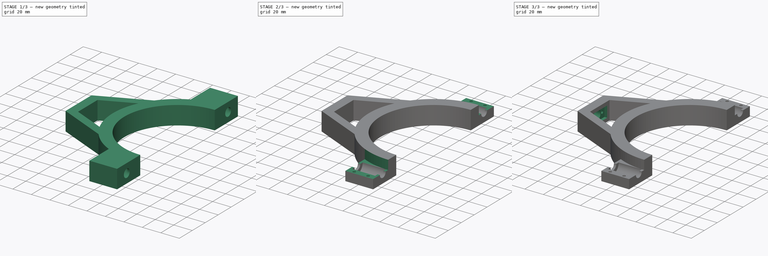
[diagram: build sequence overview — one tinted view per stage of 3, left to right]
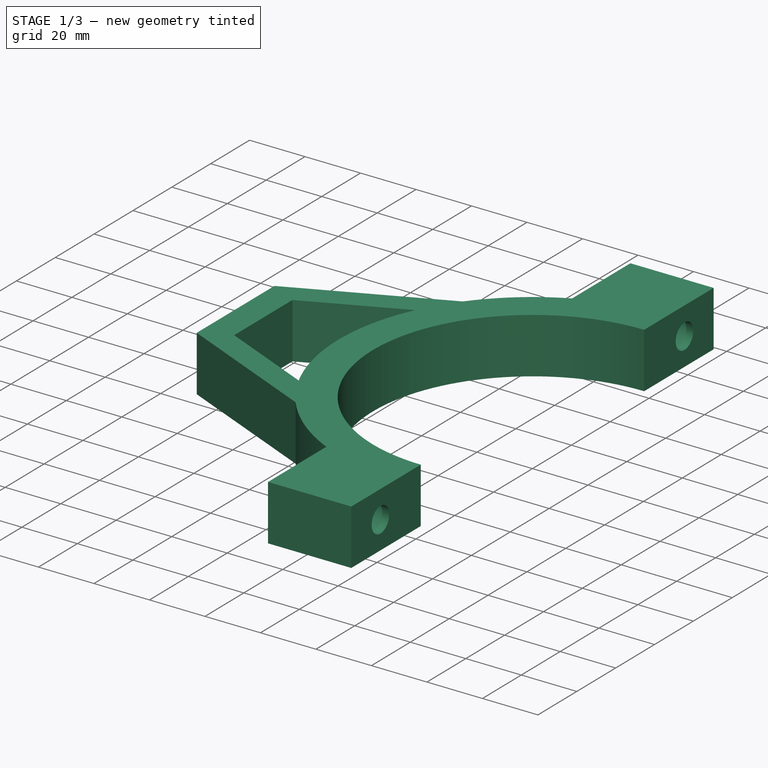
[diagram: stage 1 of 3 — iso view after this stage's code; geometry added in this stage tinted green]
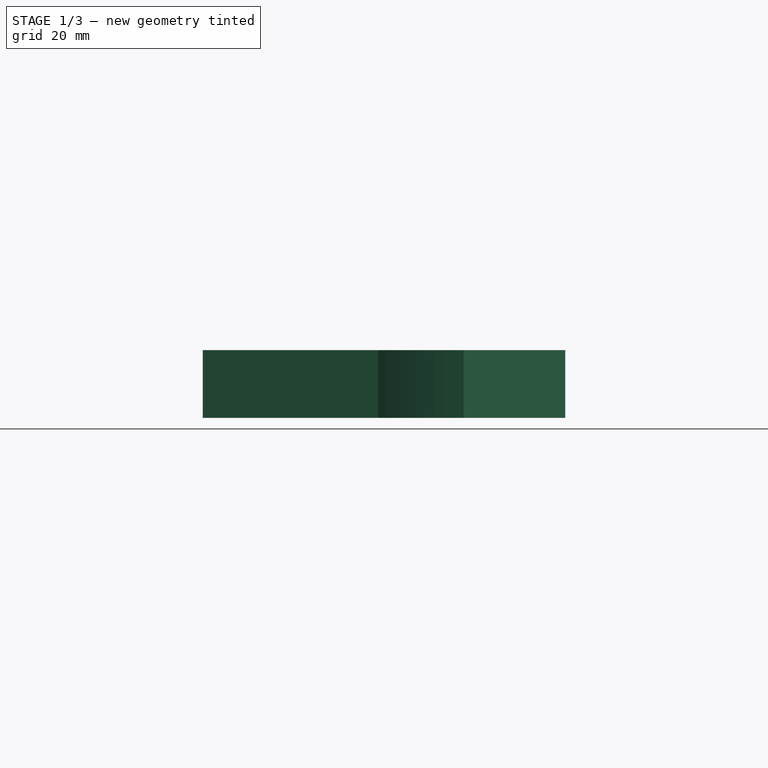
[diagram: stage 1 of 3 — front view after this stage's code; geometry added in this stage tinted green]
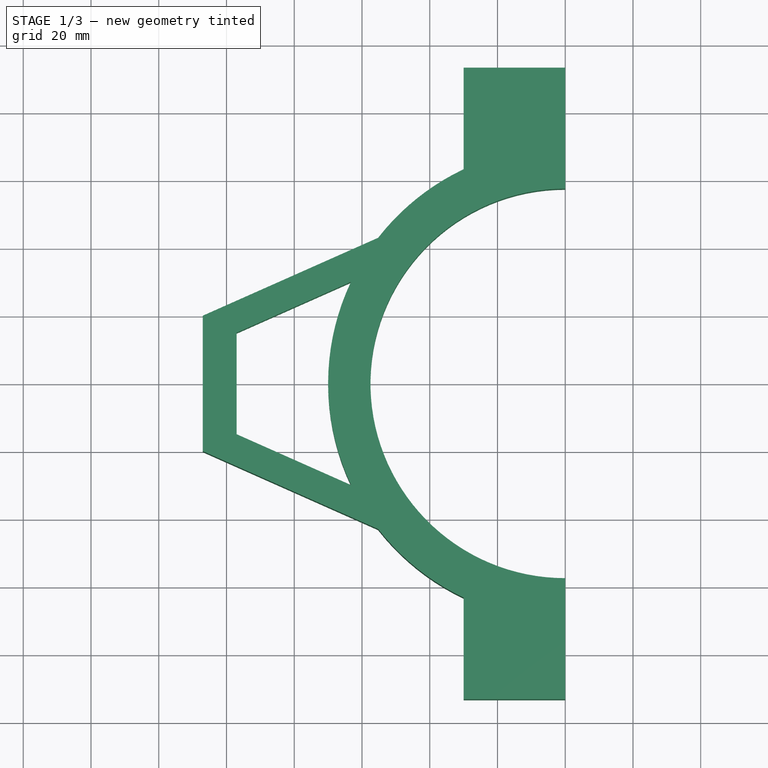
[diagram: stage 1 of 3 — top view after this stage's code; geometry added in this stage tinted green]
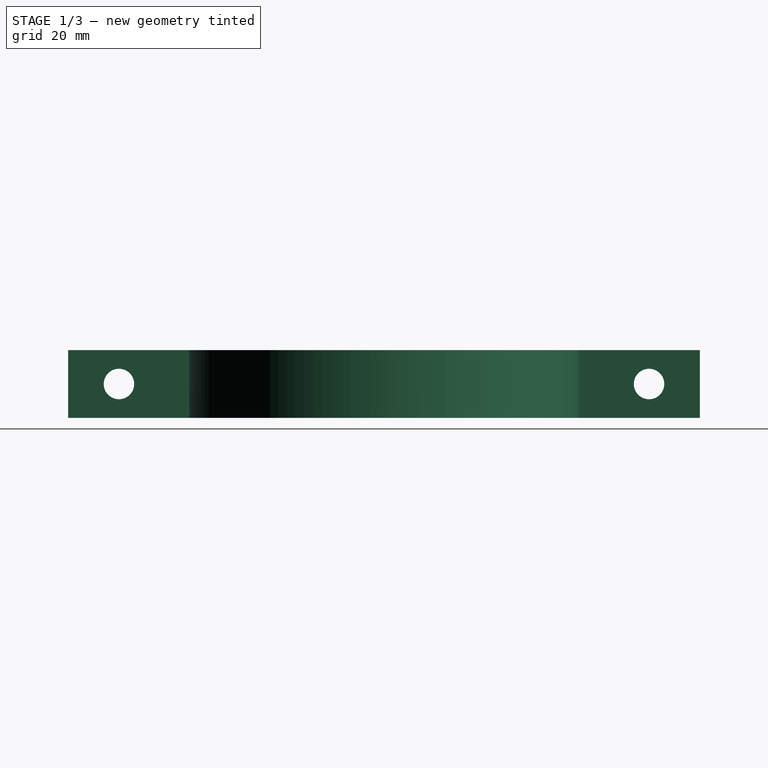
[diagram: stage 1 of 3 — right view after this stage's code; geometry added in this stage tinted green]
FCSTD DOCUMENT  (FreeCAD 1.0R39109 (Git))
Label: locl_slip_winds
License: All rights reserved
LicenseURL: https://en.wikipedia.org/wiki/All_rights_reserved
objects: Sketcher::SketchObject×8, PartDesign::Pocket×7, PartDesign::Pad×1, PartDesign::Body×1
note: 41 computed .brp shape members not serialized (recipe doc carries the construction recipe); baked Part::Feature solids carry a one-line shape summary decoded from their .brp

FEATURE [Sketcher::SketchObject] Sketch
  ArcFitTolerance = 1e-06
  AttachmentSupport = -> [XY_Plane]
  FullyConstrained = true
  MakeInternals = false
  MapMode = 5
  sketch-geometry (17):
    g0: ArcOfCircle CenterX=0 CenterY=0 CenterZ=0 NormalX=0 NormalY=0 NormalZ=1 AngleXU=0 Radius=57.5 StartAngle=1.5708 EndAngle=4.71239
    g1: ArcOfCircle CenterX=0 CenterY=0 CenterZ=0 NormalX=0 NormalY=0 NormalZ=1 AngleXU=0 Radius=70 StartAngle=2.01371 EndAngle=2.48011
    g2: LineSegment StartX=-1.06e-14 StartY=-57.5 StartZ=0 EndX=-1.06e-14 EndY=-93.2456 EndZ=0
    g3: LineSegment StartX=-1.06e-14 StartY=-93.2456 StartZ=0 EndX=-30 EndY=-93.2456 EndZ=0
    g4: LineSegment StartX=-30 StartY=-93.2456 StartZ=0 EndX=-30 EndY=-63.2456 EndZ=0
    g5: LineSegment StartX=3.5e-15 StartY=57.5 StartZ=0 EndX=3.5e-15 EndY=93.2456 EndZ=0
    g6: LineSegment StartX=3.5e-15 StartY=93.2456 StartZ=0 EndX=-30 EndY=93.2456 EndZ=0
    g7: LineSegment StartX=-30 StartY=93.2456 StartZ=0 EndX=-30 EndY=63.2456 EndZ=0
    g8: LineSegment StartX=-55.2359 StartY=43 StartZ=0 EndX=-107 EndY=20 EndZ=0
    g9: LineSegment StartX=-107 StartY=20 StartZ=0 EndX=-107 EndY=-20 EndZ=0
    g10: LineSegment StartX=-107 StartY=-20 StartZ=0 EndX=-55.2359 EndY=-43 EndZ=0
    g11: LineSegment StartX=-63.2456 StartY=30 StartZ=0 EndX=-97 EndY=15 EndZ=0
    g12: LineSegment StartX=-97 StartY=15 StartZ=0 EndX=-97 EndY=-15 EndZ=0
    g13: LineSegment StartX=-97 StartY=-15 StartZ=0 EndX=-63.2456 EndY=-30 EndZ=0
    g14: LineSegment [constr] StartX=-97 StartY=-1.8e-15 StartZ=0 EndX=-70 EndY=-1.8e-15 EndZ=0
    g15: ArcOfCircle CenterX=0 CenterY=0 CenterZ=0 NormalX=0 NormalY=0 NormalZ=1 AngleXU=0 Radius=70 StartAngle=2.69868 EndAngle=3.5845
    g16: ArcOfCircle CenterX=0 CenterY=0 CenterZ=0 NormalX=0 NormalY=0 NormalZ=1 AngleXU=0 Radius=70 StartAngle=3.80307 EndAngle=4.26948
  constraints (53):
    c: Radius(g0) = 57.5
    c: Coincident(g0,g-1)
    c: PointOnObject(g0,g-2)
    c: PointOnObject(g0,g-2)
    c: Coincident(g0,g2)
    c: Coincident(g2,g3)
    c: Coincident(g3,g4)
    c: Coincident(g4,g16)
    c: Coincident(g0,g5)
    c: Coincident(g5,g6)
    c: Horizontal(g6)
    c: Coincident(g6,g7)
    c: Coincident(g7,g1)
    c: Vertical(g7)
    c: Vertical(g5)
    c: Vertical(g2)
    c: Vertical(g4)
    c: Horizontal(g3)
    c: Vertical(g16,g1)
    c: DistanceX(g6,g6) = 30
    c: DistanceY(g7,g7) = 30
    c: Equal(g7,g4)
    c: Coincident(g1,g0)
    c: Radius(g1) = 70
    c: Coincident(g8,g9)
    c: Vertical(g9)
    c: Coincident(g9,g10)
    c: PointOnObject(g10,g16)
    c: Vertical(g10,g8)
    c: PointOnObject(g11,g15)
    c: Coincident(g11,g12)
    c: Vertical(g12)
    c: Coincident(g12,g13)
    c: DistanceY(g12,g12) = 30
    c: Vertical(g11,g13)
    c: DistanceY(g11,g8) = 5
    c: DistanceY(g11,g8) = 13
    c: DistanceY(g9,g12) = 5
    c: DistanceX(g8,g11) = 10
    c: Symmetric(g12,g12,g14)
    c: Horizontal(g14)
    c: DistanceX(g14,g14) = 27
    c: DistanceX(g11,g0) = 97
    c: DistanceY(g0,g11) = 15
    c: Equal(g1,g15)
    c: Coincident(g1,g8)
    c: PointOnObject(g15,g11)
    c: Coincident(g1,g15)
    c: Equal(g15,g16)
    c: Coincident(g15,g13)
    c: PointOnObject(g16,g10)
    c: Coincident(g15,g16)
    c: DistanceY(g13,g0) = 30
FEATURE [PartDesign::Pad] Pad
  Direction = (0,0,1)
  Length = 20
  Length2 = 10
  Profile = -> Sketch
  ReferenceAxis = -> Sketch [N_Axis]
  Refine = true
  Suppressed = false
  Type = 0
FEATURE [Sketcher::SketchObject] Sketch001
  ArcFitTolerance = 1e-06
  AttachmentSupport = -> [Pad]
  FullyConstrained = true
  MakeInternals = false
  MapMode = 5
  Placement = pos=(-1.06e-14,0,0) rot=(0.57735,0.57735,0.57735;2.0944rad)
  sketch-geometry (4):
    g0: LineSegment [constr] StartX=-5 StartY=0 StartZ=0 EndX=-5 EndY=10 EndZ=0
    g1: Circle CenterX=-78.25 CenterY=10 CenterZ=0 NormalX=0 NormalY=0 NormalZ=1 AngleXU=0 Radius=4.5
    g2: Circle CenterX=78.25 CenterY=10 CenterZ=0 NormalX=0 NormalY=0 NormalZ=1 AngleXU=0 Radius=4.5
    g3: LineSegment [constr] StartX=-93.25 StartY=-5 StartZ=0 EndX=93.25 EndY=-5 EndZ=0
  constraints (14):
    c: Distance(g0) = 10
    c: Vertical(g0)
    c: PointOnObject(g0,g-1)
    c: DistanceX(g0,g-1) = 5
    c: Diameter(g1) = 9
    c: Diameter(g2) = 9
    c: Distance(g3) = 186.5
    c: Horizontal(g3)
    c: DistanceX(g-1,g3) = 93.25
    c: DistanceX(g3,g1) = 15
    c: DistanceX(g2,g3) = 15
    c: DistanceY(g3,g-1) = 5
    c: Horizontal(g2,g0)
    c: Horizontal(g1,g2)
FEATURE [PartDesign::Pocket] Pocket
  BaseFeature = -> Pad
  Direction = (-1,0,0)
  Length = 5
  Length2 = 5
  Profile = -> Sketch001
  ReferenceAxis = -> Sketch001 [N_Axis]
  Refine = true
  Suppressed = false
  Type = 1
FEATURE [Sketcher::SketchObject] Sketch002
  ArcFitTolerance = 1e-06
  AttachmentOffset = pos=(0,0,-2.5) rot=(0,0,1;0rad)
  AttachmentSupport = -> [Pocket]
  FullyConstrained = true
  MakeInternals = false
  MapMode = 5
  Placement = pos=(-2.5,0,0) rot=(0.57735,0.57735,0.57735;2.0944rad)
  sketch-geometry (3):
    g0: LineSegment [constr] StartX=-93.25 StartY=-5 StartZ=0 EndX=93.25 EndY=-5 EndZ=0
    g1: Circle CenterX=-78.25 CenterY=10 CenterZ=0 NormalX=0 NormalY=0 NormalZ=1 AngleXU=0 Radius=8.25
    g2: Circle CenterX=78.25 CenterY=10 CenterZ=0 NormalX=0 NormalY=0 NormalZ=1 AngleXU=0 Radius=8.25
  constraints (10):
    c: Horizontal(g0)
    c: DistanceX(g0,g0) = 186.5
    c: DistanceX(g0,g-1) = 93.25
    c: DistanceY(g0,g-1) = 5
    c: Diameter(g1) = 16.5
    c: Diameter(g2) = 16.5
    c: DistanceX(g0,g1) = 15
    c: DistanceX(g2,g0) = 15
    c: DistanceY(g-1,g2) = 10
    c: DistanceY(g-1,g1) = 10
FEATURE [PartDesign::Pocket] Pocket001
  BaseFeature = -> Pocket
  Direction = (-1,0,0)
  Length = 25
  Length2 = 5
  Profile = -> Sketch002
  ReferenceAxis = -> Sketch002 [N_Axis]
  Refine = true
  Suppressed = false
  Type = 0
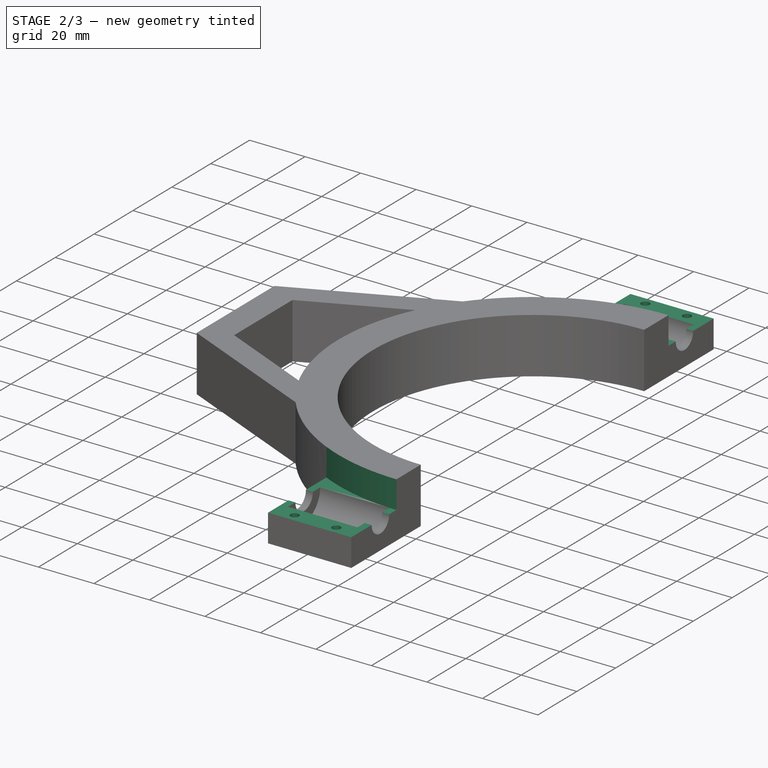
[diagram: stage 2 of 3 — iso view after this stage's code; geometry added in this stage tinted green]
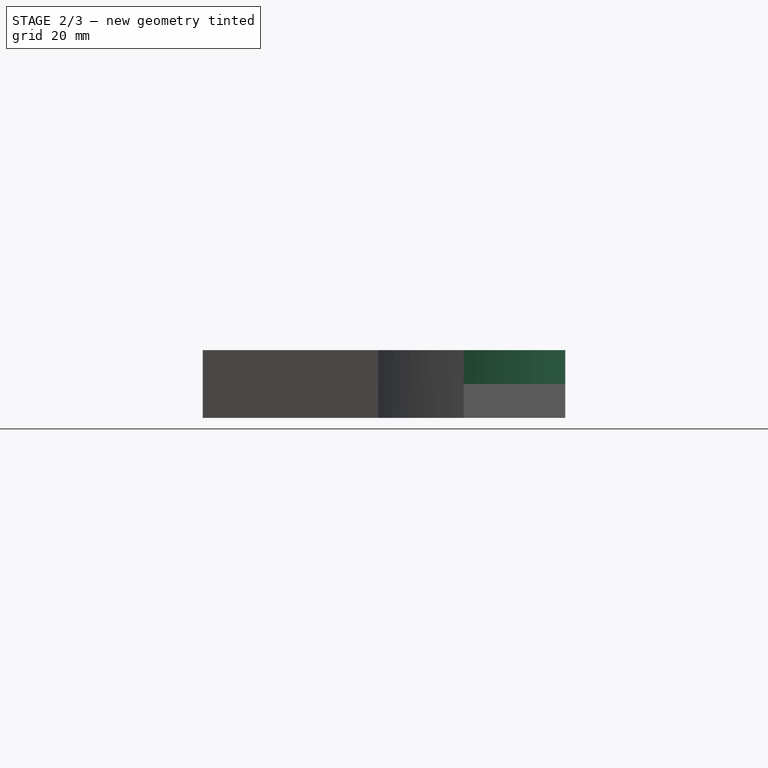
[diagram: stage 2 of 3 — front view after this stage's code; geometry added in this stage tinted green]
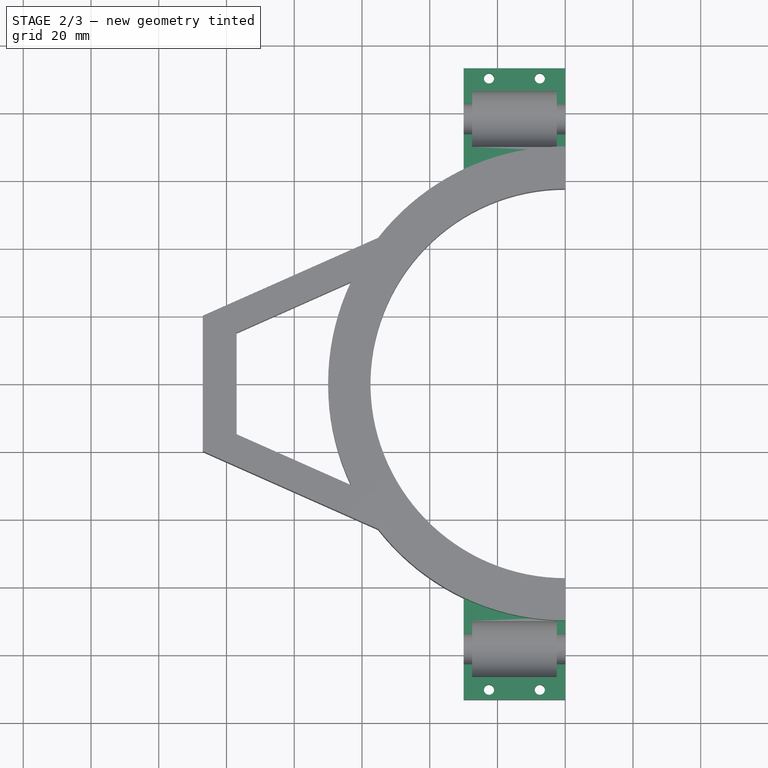
[diagram: stage 2 of 3 — top view after this stage's code; geometry added in this stage tinted green]
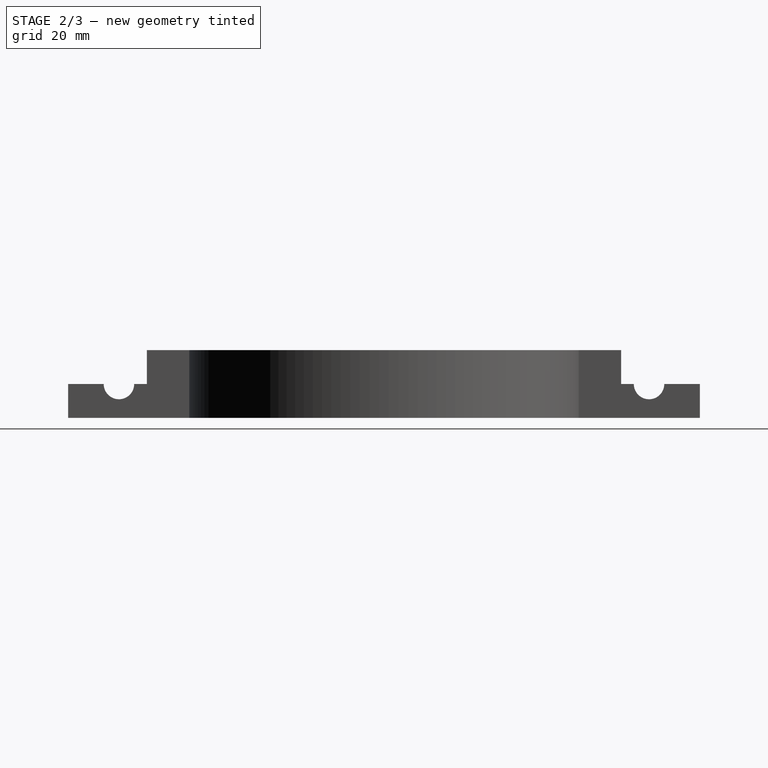
[diagram: stage 2 of 3 — right view after this stage's code; geometry added in this stage tinted green]
FEATURE [Sketcher::SketchObject] Sketch003
  ArcFitTolerance = 1e-06
  AttachmentSupport = -> [Pocket001]
  FullyConstrained = true
  MakeInternals = false
  MapMode = 5
  Placement = pos=(0,0,20) rot=(0,0,1;0rad)
  sketch-geometry (8):
    g0: ArcOfCircle CenterX=0 CenterY=0 CenterZ=0 NormalX=0 NormalY=0 NormalZ=1 AngleXU=0 Radius=70 StartAngle=1.5708 EndAngle=2.04204
    g1: LineSegment StartX=-31.7793 StartY=62.3705 StartZ=0 EndX=-31.7793 EndY=95 EndZ=0
    g2: LineSegment StartX=-31.7793 StartY=95 StartZ=0 EndX=3.6e-15 EndY=95 EndZ=0
    g3: LineSegment StartX=4.3e-15 StartY=95 StartZ=0 EndX=4.3e-15 EndY=70 EndZ=0
    g4: ArcOfCircle CenterX=0 CenterY=0 CenterZ=0 NormalX=0 NormalY=0 NormalZ=1 AngleXU=0 Radius=70 StartAngle=4.24115 EndAngle=4.71239
    g5: LineSegment StartX=-31.7793 StartY=-62.3705 StartZ=0 EndX=-31.7793 EndY=-95 EndZ=0
    g6: LineSegment StartX=-31.7793 StartY=-95 StartZ=0 EndX=3.6e-15 EndY=-95 EndZ=0
    g7: LineSegment StartX=4.3e-15 StartY=-95 StartZ=0 EndX=4.3e-15 EndY=-70 EndZ=0
  constraints (24):
    c: Coincident(g0,g-1)
    c: PointOnObject(g0,g-2)
    c: Coincident(g0,g1)
    c: Coincident(g1,g2)
    c: Horizontal(g2)
    c: Coincident(g2,g3)
    c: Coincident(g3,g0)
    c: Vertical(g1)
    c: Vertical(g3)
    c: Radius(g0) = 70
    c: Angle(g0) = 0.471239
    c: DistanceY(g3,g3) = 25
    c: Coincident(g4,g0)
    c: Coincident(g4,g5)
    c: Coincident(g5,g6)
    c: Coincident(g6,g7)
    c: Coincident(g7,g4)
    c: Vertical(g7)
    c: Horizontal(g6)
    c: Vertical(g5)
    c: Vertical(g4,g0)
    c: Vertical(g0,g4)
    c: Equal(g4,g0)
    c: Equal(g7,g3)
FEATURE [PartDesign::Pocket] Pocket002
  BaseFeature = -> Pocket001
  Direction = (0,0,-1)
  Length = 10
  Length2 = 5
  Profile = -> Sketch003
  ReferenceAxis = -> Sketch003 [N_Axis]
  Refine = true
  Suppressed = false
  Type = 0
FEATURE [Sketcher::SketchObject] Sketch004
  ArcFitTolerance = 1e-06
  AttachmentSupport = -> [Pocket002]
  FullyConstrained = true
  MakeInternals = false
  MapMode = 5
  Placement = pos=(0,0,10) rot=(0,0,1;0rad)
  sketch-geometry (5):
    g0: Circle CenterX=-22.5 CenterY=90.25 CenterZ=0 NormalX=0 NormalY=0 NormalZ=1 AngleXU=0 Radius=1.5
    g1: Circle CenterX=-7.5 CenterY=90.25 CenterZ=0 NormalX=0 NormalY=0 NormalZ=1 AngleXU=0 Radius=1.5
    g2: LineSegment [constr] StartX=5 StartY=93.25 StartZ=0 EndX=5 EndY=0 EndZ=0
    g3: Circle CenterX=-7.5 CenterY=-90.25 CenterZ=0 NormalX=0 NormalY=0 NormalZ=1 AngleXU=0 Radius=1.5
    g4: Circle CenterX=-22.5 CenterY=-90.25 CenterZ=0 NormalX=0 NormalY=0 NormalZ=1 AngleXU=0 Radius=1.5
  constraints (16):
    c: Diameter(g0) = 3
    c: Diameter(g1) = 3
    c: DistanceX(g0,g1) = 15
    c: Horizontal(g1,g0)
    c: PointOnObject(g2,g-1)
    c: Vertical(g2)
    c: DistanceY(g2,g2) = 93.25
    c: DistanceX(g-1,g2) = 5
    c: DistanceY(g1,g2) = 3
    c: DistanceX(g1,g-1) = 7.5
    c: Equal(g1,g3)
    c: Equal(g3,g4)
    c: Horizontal(g3,g4)
    c: Vertical(g3,g1)
    c: Vertical(g4,g0)
    c: DistanceY(g3,g-1) = 90.25
FEATURE [PartDesign::Pocket] Pocket003
  BaseFeature = -> Pocket002
  Direction = (0,0,-1)
  Length = 5
  Length2 = 5
  Profile = -> Sketch004
  ReferenceAxis = -> Sketch004 [N_Axis]
  Refine = true
  Suppressed = false
  Type = 1
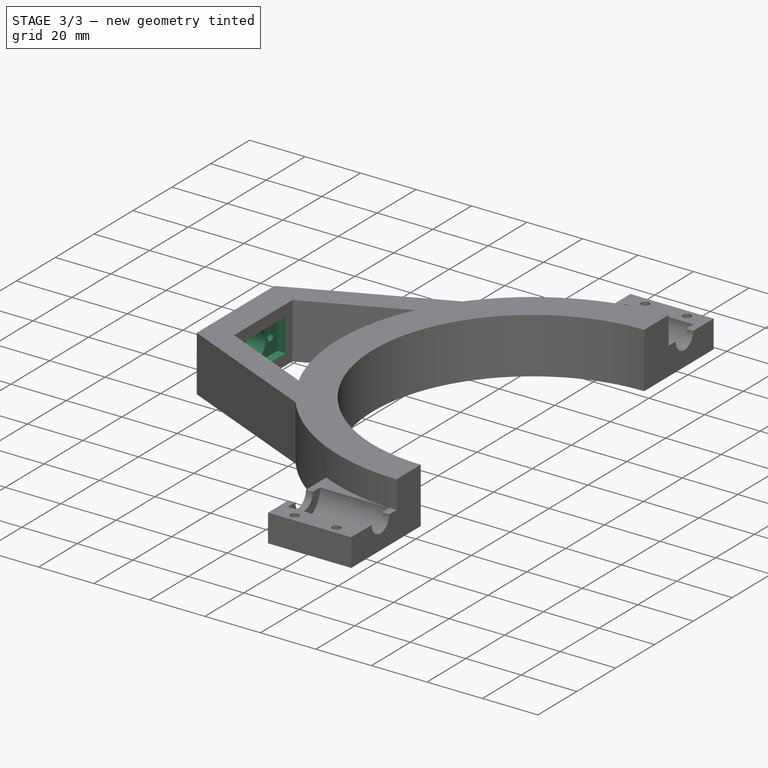
[diagram: stage 3 of 3 — iso view after this stage's code; geometry added in this stage tinted green]
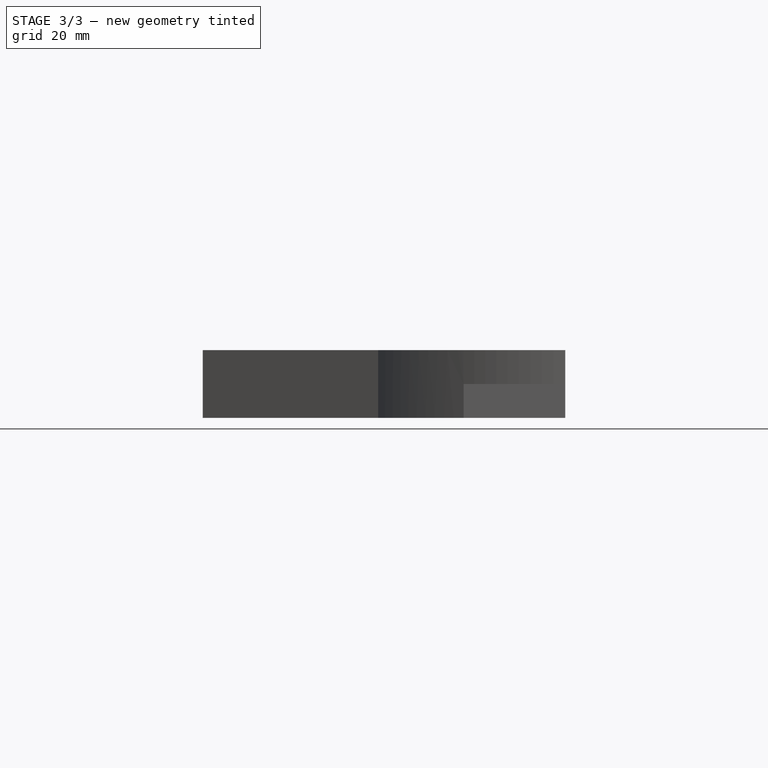
[diagram: stage 3 of 3 — front view after this stage's code; geometry added in this stage tinted green]
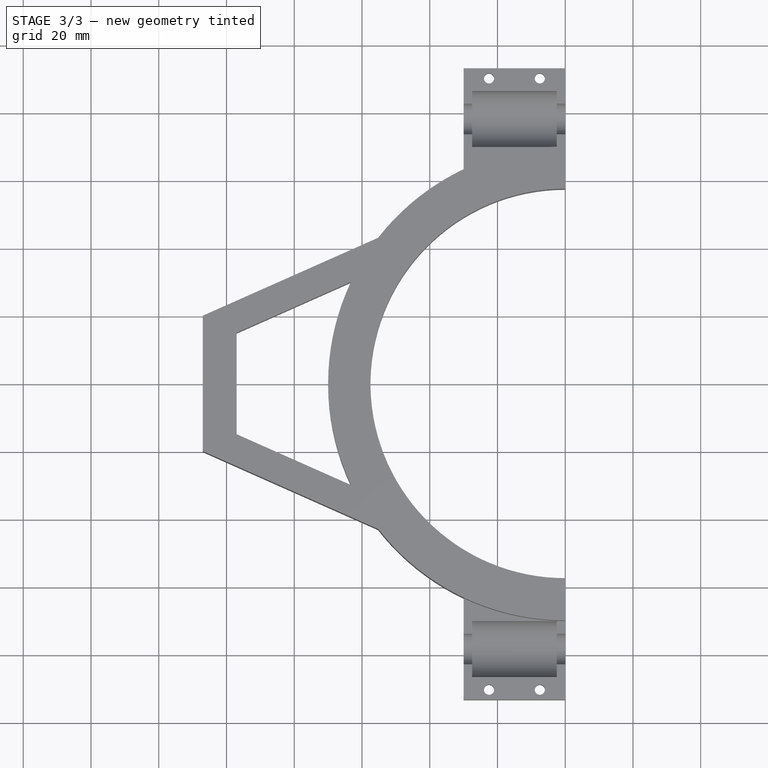
[diagram: stage 3 of 3 — top view after this stage's code; geometry added in this stage tinted green]
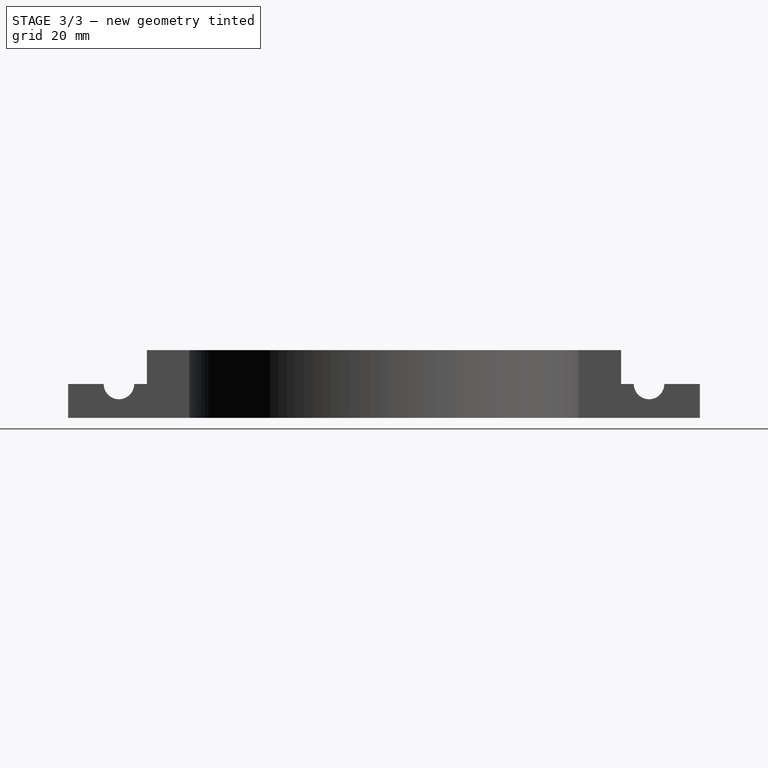
[diagram: stage 3 of 3 — right view after this stage's code; geometry added in this stage tinted green]
FEATURE [Sketcher::SketchObject] Sketch005
  ArcFitTolerance = 1e-06
  AttachmentSupport = -> [Pocket003]
  FullyConstrained = true
  MakeInternals = false
  MapMode = 5
  Placement = pos=(-107,0,0) rot=(0.57735,-0.57735,-0.57735;2.0944rad)
  sketch-geometry (1):
    g0: Circle CenterX=0 CenterY=10 CenterZ=0 NormalX=0 NormalY=0 NormalZ=1 AngleXU=0 Radius=5.5
  constraints (3):
    c: Diameter(g0) = 11
    c: PointOnObject(g0,g-2)
    c: DistanceY(g-1,g0) = 10
FEATURE [PartDesign::Pocket] Pocket004
  BaseFeature = -> Pocket003
  Direction = (1,0,0)
  Length = 10
  Length2 = 5
  Profile = -> Sketch005
  ReferenceAxis = -> Sketch005 [N_Axis]
  Refine = true
  Suppressed = false
  Type = 0
FEATURE [Sketcher::SketchObject] Sketch006
  ArcFitTolerance = 1e-06
  AttachmentSupport = -> [Pocket004]
  FullyConstrained = true
  MakeInternals = false
  MapMode = 5
  Placement = pos=(-97,0,0) rot=(0.57735,0.57735,0.57735;2.0944rad)
  sketch-geometry (4):
    g0: LineSegment StartX=-11.5 StartY=16 StartZ=0 EndX=-11.5 EndY=4 EndZ=0
    g1: LineSegment StartX=-11.5 StartY=4 StartZ=0 EndX=11.5 EndY=4 EndZ=0
    g2: LineSegment StartX=11.5 StartY=4 StartZ=0 EndX=11.5 EndY=16 EndZ=0
    g3: LineSegment StartX=11.5 StartY=16 StartZ=0 EndX=-11.5 EndY=16 EndZ=0
  constraints (12):
    c: Coincident(g0,g1)
    c: Coincident(g1,g2)
    c: Coincident(g2,g3)
    c: Coincident(g3,g0)
    c: Vertical(g0)
    c: Vertical(g2)
    c: Horizontal(g1)
    c: Horizontal(g3)
    c: DistanceX(g1,g1) = 23
    c: DistanceY(g2,g2) = 12
    c: DistanceY(g-1,g1) = 4
    c: DistanceX(g-1,g1) = 11.5
FEATURE [PartDesign::Pocket] Pocket005
  BaseFeature = -> Pocket004
  Direction = (-1,0,0)
  Length = 3
  Length2 = 5
  Profile = -> Sketch006
  ReferenceAxis = -> Sketch006 [N_Axis]
  Refine = true
  Suppressed = false
  Type = 0
FEATURE [Sketcher::SketchObject] Sketch007
  ArcFitTolerance = 1e-06
  AttachmentSupport = -> [Pocket005]
  FullyConstrained = true
  MakeInternals = false
  MapMode = 5
  Placement = pos=(-100,0,0) rot=(0.57735,0.57735,0.57735;2.0944rad)
  sketch-geometry (3):
    g0: LineSegment [constr] StartX=-11.5 StartY=2 StartZ=0 EndX=11.5 EndY=2 EndZ=0
    g1: Circle CenterX=-8 CenterY=10 CenterZ=0 NormalX=0 NormalY=0 NormalZ=1 AngleXU=0 Radius=1.5
    g2: Circle CenterX=8 CenterY=10 CenterZ=0 NormalX=0 NormalY=0 NormalZ=1 AngleXU=0 Radius=1.5
  constraints (10):
    c: Distance(g0) = 23
    c: Horizontal(g0)
    c: DistanceX(g-1,g0) = 11.5
    c: Distance(g0,g-1) = 2
    c: DistanceX(g1,g2) = 16
    c: Horizontal(g2,g1)
    c: DistanceX(g-1,g2) = 8
    c: Equal(g2,g1)
    c: Diameter(g1) = 3
    c: DistanceY(g-1,g2) = 10
FEATURE [PartDesign::Pocket] Pocket006
  BaseFeature = -> Pocket005
  Direction = (-1,0,0)
  Length = 5
  Length2 = 5
  Profile = -> Sketch007
  ReferenceAxis = -> Sketch007 [N_Axis]
  Refine = true
  Suppressed = false
  Type = 1
FEATURE [PartDesign::Body] Body
  AllowCompound = false
  Group = -> [Sketch,Pad,Sketch001,Pocket,Sketch002,Pocket001,Sketch003,Pocket002,Sketch004,Pocket003,Sketch005,Pocket004,Sketch006,Pocket005,Sketch007,Pocket006]
  Origin = -> Origin
  Tip = -> Pocket006
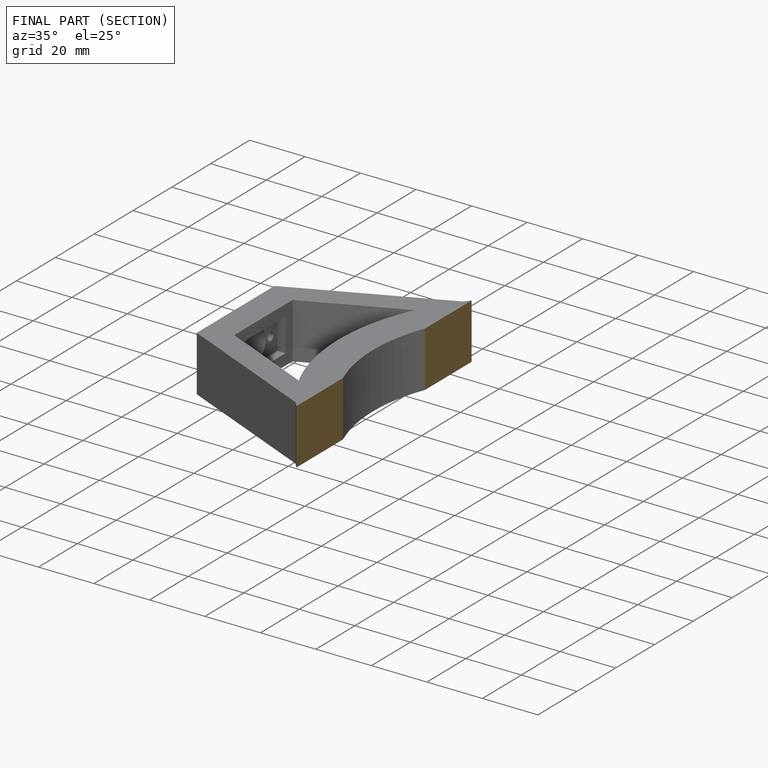
[diagram: finished part — half-section view (interior)]
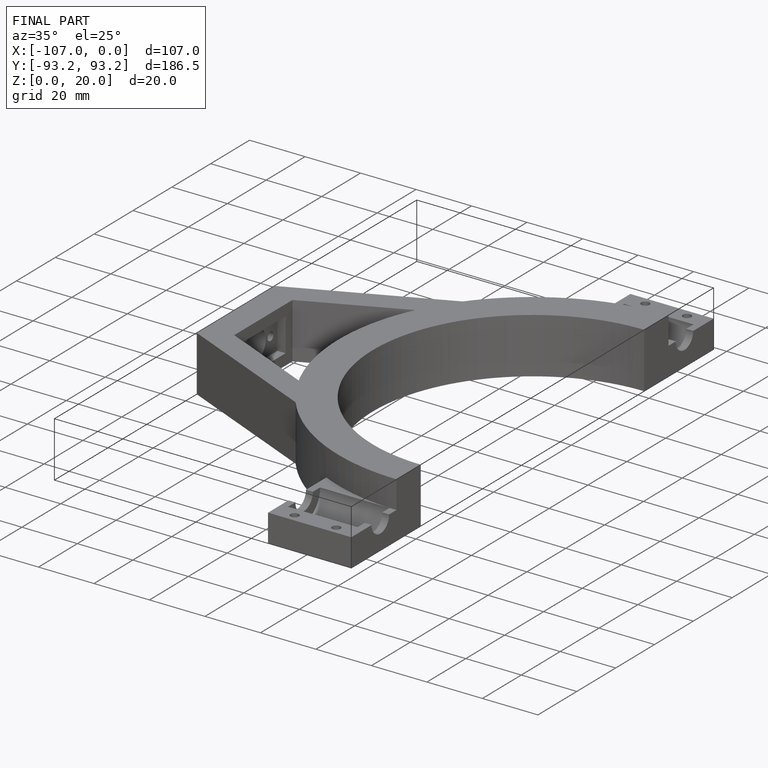
[diagram: finished part — iso view with bounding-box wireframe]
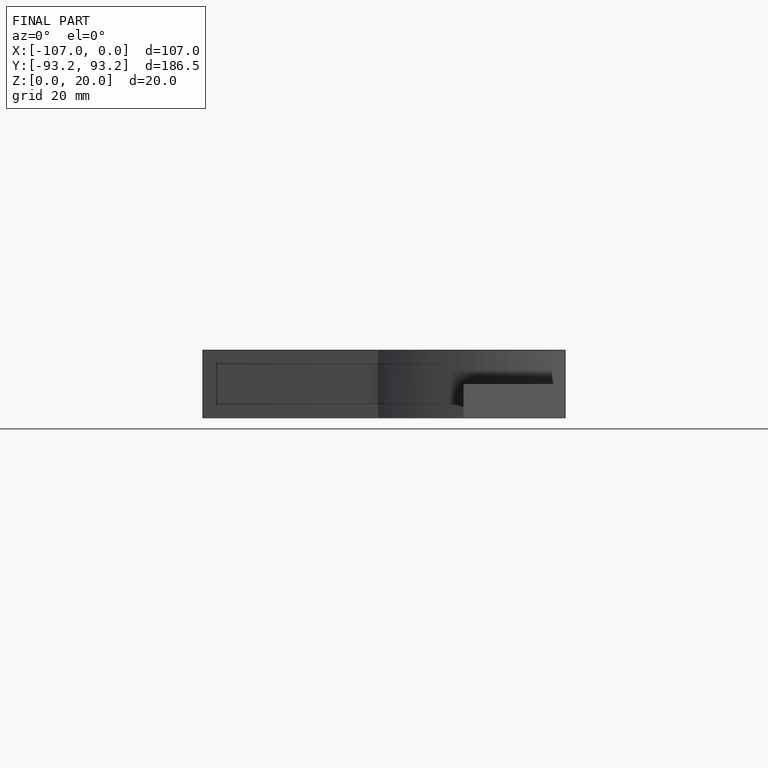
[diagram: finished part — front view with bounding-box wireframe]
